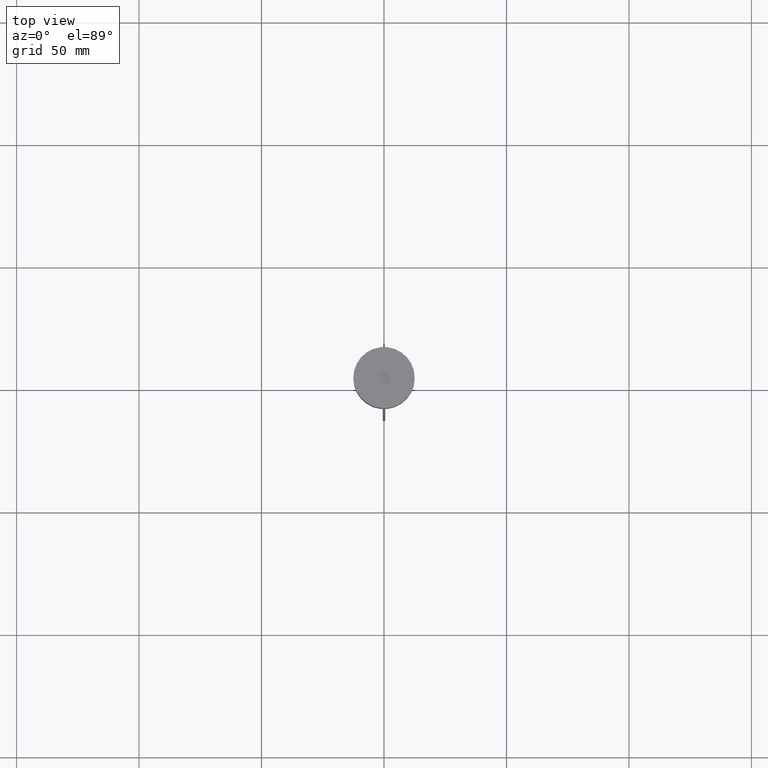
[diagram: clean part render]
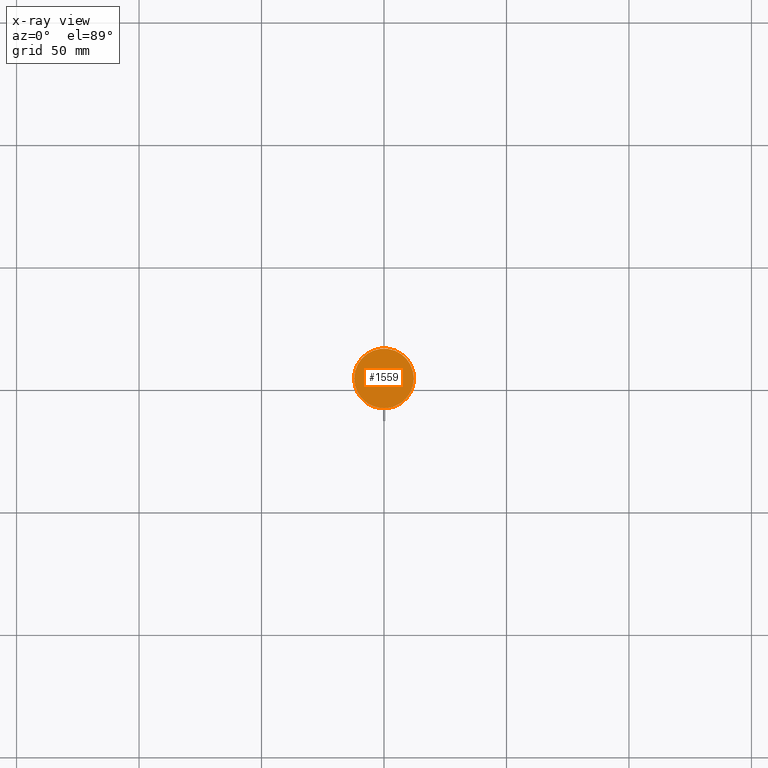
[diagram: x-ray — body ghosted, one internal face saturated and labeled with its STEP entity id]
A machine part, top view, then the same camera in x-ray: the body is ghosted and one INTERNAL B-rep face — a face not visible from any outside direction — is saturated and labeled: STEP entity #1559.
In plain terms, the highlighted planar face has unit normal (0, 0, -1).
Its self-contained STEP definition (entity closure, byte-faithful):
#172 = CARTESIAN_POINT ( 'NONE',  ( 12.20000000000000639, 1.512438796946981880E-15, -20.49999999999999645 ) ) ;
#205 = DIRECTION ( 'NONE',  ( -1.000000000000000000, 0.000000000000000000, 0.000000000000000000 ) ) ;
#260 = PLANE ( 'NONE',  #403 ) ;
#403 = AXIS2_PLACEMENT_3D ( 'NONE', #1523, #1379, #412 ) ;
#412 = DIRECTION ( 'NONE',  ( -1.000000000000000000, 0.000000000000000000, -0.000000000000000000 ) ) ;
#516 = VERTEX_POINT ( 'NONE', #1470 ) ;
#555 = DIRECTION ( 'NONE',  ( -0.000000000000000000, -0.000000000000000000, 1.000000000000000000 ) ) ;
#584 = EDGE_CURVE ( 'NONE', #849, #516, #668, .T. ) ;
#668 = CIRCLE ( 'NONE', #974, 12.20000000000000639 ) ;
#767 = EDGE_LOOP ( 'NONE', ( #1823, #1766 ) ) ;
#849 = VERTEX_POINT ( 'NONE', #172 ) ;
#900 = CARTESIAN_POINT ( 'NONE',  ( 0.000000000000000000, 0.000000000000000000, -20.49999999999999645 ) ) ;
#974 = AXIS2_PLACEMENT_3D ( 'NONE', #1372, #555, #1382 ) ;
#1208 = FACE_OUTER_BOUND ( 'NONE', #767, .T. ) ;
#1372 = CARTESIAN_POINT ( 'NONE',  ( 0.000000000000000000, 0.000000000000000000, -20.49999999999999645 ) ) ;
#1379 = DIRECTION ( 'NONE',  ( 0.000000000000000000, 0.000000000000000000, -1.000000000000000000 ) ) ;
#1382 = DIRECTION ( 'NONE',  ( -1.000000000000000000, 0.000000000000000000, 0.000000000000000000 ) ) ;
#1470 = CARTESIAN_POINT ( 'NONE',  ( -12.20000000000000639, 0.000000000000000000, -20.49999999999999645 ) ) ;
#1523 = CARTESIAN_POINT ( 'NONE',  ( 0.000000000000000000, 0.000000000000000000, -20.49999999999999645 ) ) ;
#1544 = DIRECTION ( 'NONE',  ( -0.000000000000000000, -0.000000000000000000, 1.000000000000000000 ) ) ;
#1559 = ADVANCED_FACE ( 'NONE', ( #1208 ), #260, .F. ) ;
#1622 = CIRCLE ( 'NONE', #1655, 12.20000000000000639 ) ;
#1655 = AXIS2_PLACEMENT_3D ( 'NONE', #900, #1544, #205 ) ;
#1766 = ORIENTED_EDGE ( 'NONE', *, *, #584, .T. ) ;
#1823 = ORIENTED_EDGE ( 'NONE', *, *, #1887, .T. ) ;
#1887 = EDGE_CURVE ( 'NONE', #516, #849, #1622, .T. ) ;